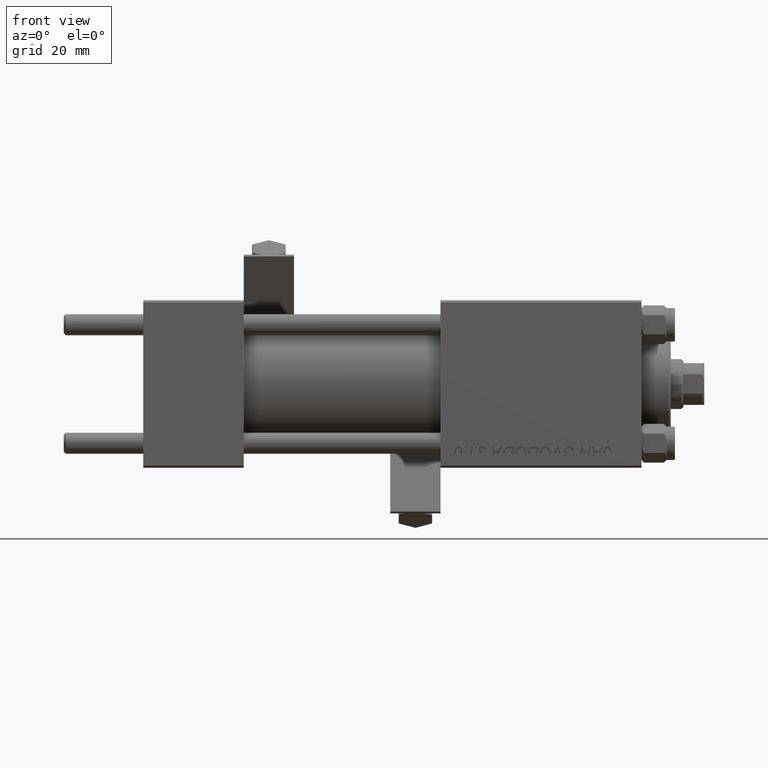
[diagram: clean part render]
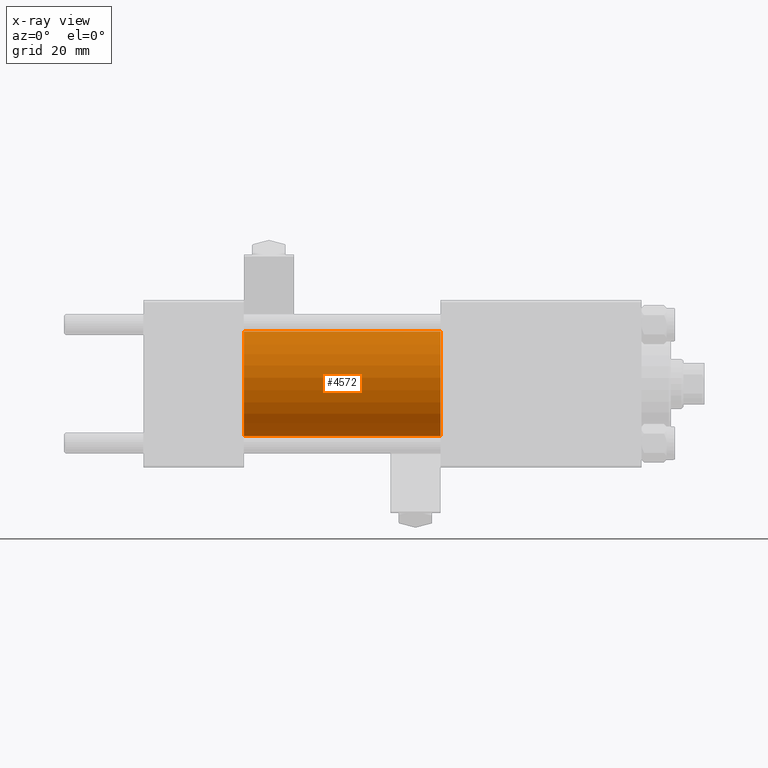
[diagram: x-ray — body ghosted, one internal face saturated and labeled with its STEP entity id]
A machine part, front view, then the same camera in x-ray: the body is ghosted and one INTERNAL B-rep face — a face not visible from any outside direction — is saturated and labeled: STEP entity #4572.
In plain terms, the highlighted cylindrical surface (partial cylindrical patch) has radius 12.5 mm, axis along (-1, -0, -0).
Its self-contained STEP definition (entity closure, byte-faithful):
#506 = CARTESIAN_POINT ( 'NONE',  ( 24.00000000000000000, 0.000000000000000000, 0.000000000000000000 ) ) ;
#932 = CARTESIAN_POINT ( 'NONE',  ( 71.00000000000001421, 0.000000000000000000, 0.000000000000000000 ) ) ;
#1341 = CARTESIAN_POINT ( 'NONE',  ( 71.00000000000001421, 1.530808498934191127E-15, -12.49999999999999645 ) ) ;
#2002 = EDGE_CURVE ( 'NONE', #19722, #26708, #10009, .T. ) ;
#2288 = CARTESIAN_POINT ( 'NONE',  ( 71.00000000000001421, 0.000000000000000000, 0.000000000000000000 ) ) ;
#3657 = DIRECTION ( 'NONE',  ( -1.000000000000000000, -0.000000000000000000, -0.000000000000000000 ) ) ;
#4572 = ADVANCED_FACE ( 'NONE', ( #29465 ), #44627, .F. ) ;
#6587 = ORIENTED_EDGE ( 'NONE', *, *, #2002, .F. ) ;
#8257 = EDGE_CURVE ( 'NONE', #19664, #19722, #26089, .T. ) ;
#9498 = DIRECTION ( 'NONE',  ( 1.000000000000000000, 0.000000000000000000, 0.000000000000000000 ) ) ;
#10009 = CIRCLE ( 'NONE', #42001, 12.49999999999999645 ) ;
#12916 = CIRCLE ( 'NONE', #50637, 12.49999999999999645 ) ;
#14381 = CARTESIAN_POINT ( 'NONE',  ( 24.00000000000000000, 1.530808498934191127E-15, -12.49999999999999645 ) ) ;
#16003 = VECTOR ( 'NONE', #45359, 1000.000000000000000 ) ;
#17482 = DIRECTION ( 'NONE',  ( 0.000000000000000000, 0.000000000000000000, -1.000000000000000000 ) ) ;
#18359 = CARTESIAN_POINT ( 'NONE',  ( 71.00000000000001421, 0.000000000000000000, 12.49999999999999645 ) ) ;
#19664 = VERTEX_POINT ( 'NONE', #18359 ) ;
#19722 = VERTEX_POINT ( 'NONE', #19889 ) ;
#19889 = CARTESIAN_POINT ( 'NONE',  ( 24.00000000000000000, 0.000000000000000000, 12.49999999999999645 ) ) ;
#19985 = VECTOR ( 'NONE', #3657, 1000.000000000000000 ) ;
#20842 = ORIENTED_EDGE ( 'NONE', *, *, #49952, .T. ) ;
#21255 = DIRECTION ( 'NONE',  ( -1.000000000000000000, -0.000000000000000000, -0.000000000000000000 ) ) ;
#25099 = DIRECTION ( 'NONE',  ( 0.000000000000000000, 0.000000000000000000, 1.000000000000000000 ) ) ;
#26089 = LINE ( 'NONE', #29456, #16003 ) ;
#26708 = VERTEX_POINT ( 'NONE', #14381 ) ;
#29456 = CARTESIAN_POINT ( 'NONE',  ( 71.00000000000001421, 0.000000000000000000, 12.49999999999999645 ) ) ;
#29465 = FACE_OUTER_BOUND ( 'NONE', #31992, .T. ) ;
#31873 = DIRECTION ( 'NONE',  ( 1.000000000000000000, 0.000000000000000000, 0.000000000000000000 ) ) ;
#31992 = EDGE_LOOP ( 'NONE', ( #20842, #50254, #6587, #34050 ) ) ;
#34050 = ORIENTED_EDGE ( 'NONE', *, *, #8257, .F. ) ;
#34620 = VERTEX_POINT ( 'NONE', #1341 ) ;
#35275 = CARTESIAN_POINT ( 'NONE',  ( 71.00000000000001421, 1.530808498934191127E-15, -12.49999999999999645 ) ) ;
#36684 = EDGE_CURVE ( 'NONE', #34620, #26708, #38099, .T. ) ;
#38099 = LINE ( 'NONE', #35275, #19985 ) ;
#42001 = AXIS2_PLACEMENT_3D ( 'NONE', #506, #31873, #47557 ) ;
#44627 = CYLINDRICAL_SURFACE ( 'NONE', #49489, 12.49999999999999645 ) ;
#45359 = DIRECTION ( 'NONE',  ( -1.000000000000000000, -0.000000000000000000, -0.000000000000000000 ) ) ;
#47557 = DIRECTION ( 'NONE',  ( 0.000000000000000000, 0.000000000000000000, -1.000000000000000000 ) ) ;
#49489 = AXIS2_PLACEMENT_3D ( 'NONE', #932, #21255, #25099 ) ;
#49952 = EDGE_CURVE ( 'NONE', #19664, #34620, #12916, .T. ) ;
#50254 = ORIENTED_EDGE ( 'NONE', *, *, #36684, .T. ) ;
#50637 = AXIS2_PLACEMENT_3D ( 'NONE', #2288, #9498, #17482 ) ;